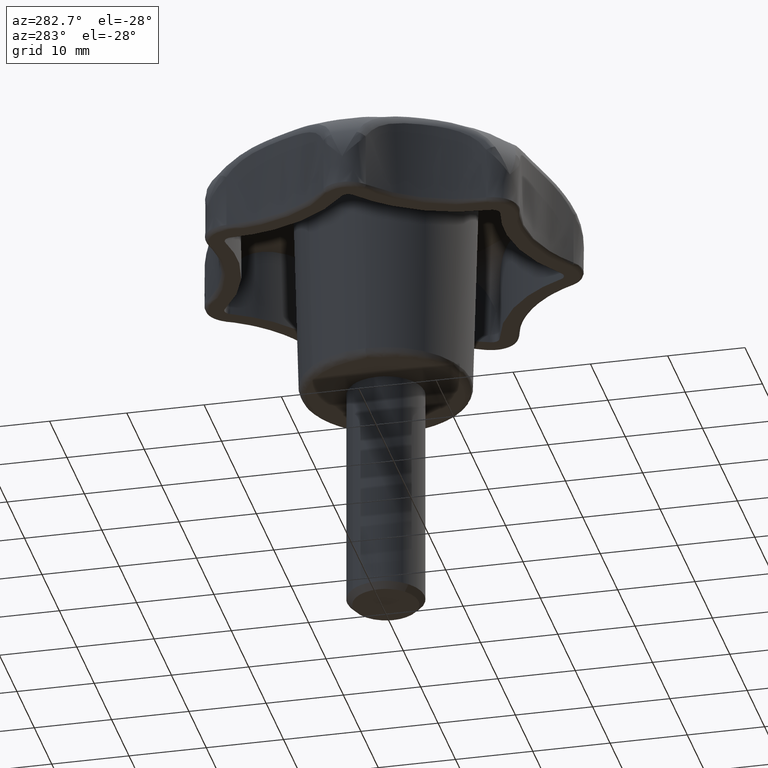
[diagram: clean part render]
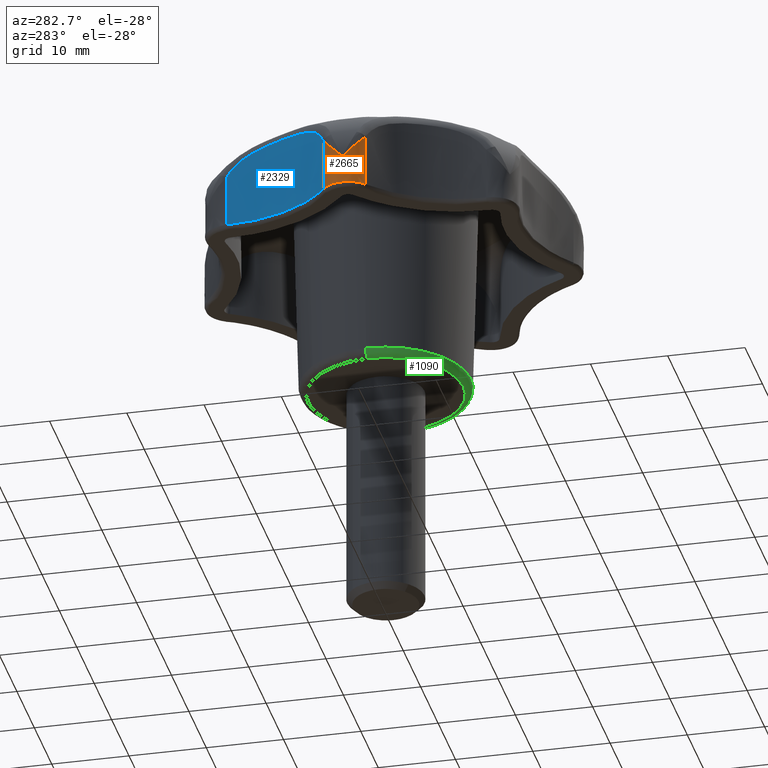
[diagram: same view with three faces highlighted in distinct colors, each labeled with its STEP entity id]
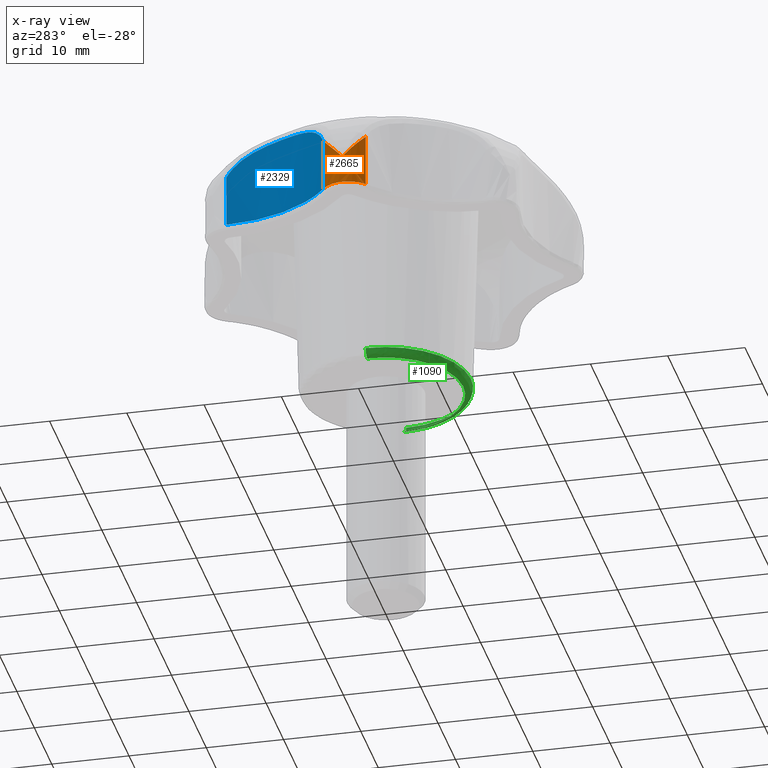
[diagram: x-ray of the same camera — body ghosted, the three highlighted faces saturated]
A machine part, auxiliary view with three faces highlighted in distinct colors.
The next image is the same camera in x-ray (body ghosted, the three faces saturated) — at least one of them is partly hidden behind the body in this view.
Their STEP definitions:

[orange] entity #2665 — the highlighted face is a freeform B-spline surface patch.
#1708=CARTESIAN_POINT('',(-23.682213461277250,-2.736410399521950,17.500000000000000));
#1709=VERTEX_POINT('',#1708);
#1843=CARTESIAN_POINT('',(-23.682214326973849,2.736410172315180,17.500000000000000));
#1844=VERTEX_POINT('',#1843);
#1872=CARTESIAN_POINT('',(-23.682214326973849,2.736410172315180,17.500000000000000));
#1873=CARTESIAN_POINT('',(-23.861324242538998,2.593607576762024,17.500000000000028));
#1874=CARTESIAN_POINT('',(-24.191356746801372,2.272658234154096,17.499999999999950));
#1875=CARTESIAN_POINT('',(-24.573701968862132,1.717476145991039,17.500000000000000));
#1876=CARTESIAN_POINT('',(-24.864392160059769,1.055515035988625,17.500000000000021));
#1877=CARTESIAN_POINT('',(-25.004150075672911,0.377677954296877,17.500000000000021));
#1878=CARTESIAN_POINT('',(-25.004148971906918,-0.361252365236103,17.499999999999961));
#1879=CARTESIAN_POINT('',(-24.869250104944271,-1.039517742271370,17.500000000000131));
#1880=CARTESIAN_POINT('',(-24.602532889975901,-1.658622374827624,17.499999999999911));
#1881=CARTESIAN_POINT('',(-24.223613110557100,-2.234405240480675,17.500000000000071));
#1882=CARTESIAN_POINT('',(-23.899736841708169,-2.563030163246250,17.500000000000011));
#1883=CARTESIAN_POINT('',(-23.682213461277250,-2.736410399521950,17.500000000000000));
#1884=B_SPLINE_CURVE_WITH_KNOTS('',3,(#1872,#1873,#1874,#1875,#1876,#1877,#1878,#1879,#1880,#1881,#1882,#1883),.UNSPECIFIED.,.F.,.U.,(4,1,1,1,1,1,1,1,1,4),(0.000000099004295,0.687209843184893,1.374457459925336,2.012609384164172,2.847117634452309,3.436119319032538,4.221539435134553,4.908780129026921,5.448751376849535,6.283237454115886),.UNSPECIFIED.);
#1885=EDGE_CURVE('',#1844,#1709,#1884,.T.);
#2166=CARTESIAN_POINT('',(-23.682213461277250,-2.736410399521950,24.301415013926700));
#2167=VERTEX_POINT('',#2166);
#2168=CARTESIAN_POINT('',(-23.682213461277250,-2.736410399521950,24.301415013926700));
#2169=CARTESIAN_POINT('',(-23.682213461277250,-2.736410399521950,17.500000000000000));
#2170=QUASI_UNIFORM_CURVE('',1,(#2168,#2169),.UNSPECIFIED.,.F.,.U.);
#2171=EDGE_CURVE('',#2167,#1709,#2170,.T.);
#2261=CARTESIAN_POINT('',(-23.682214326973849,2.736410172315180,24.301413890419202));
#2262=VERTEX_POINT('',#2261);
#2263=CARTESIAN_POINT('',(-23.682214326973849,2.736410172315180,24.301413890419202));
#2264=CARTESIAN_POINT('',(-23.682214326973849,2.736410172315180,17.500000000000000));
#2265=QUASI_UNIFORM_CURVE('',1,(#2263,#2264),.UNSPECIFIED.,.F.,.U.);
#2266=EDGE_CURVE('',#2262,#1844,#2265,.T.);
#2594=CARTESIAN_POINT('',(-23.609835668996190,2.792596184526401,24.471450389274871));
#2595=CARTESIAN_POINT('',(-23.609835668996190,2.792596184526401,17.325713740268132));
#2596=CARTESIAN_POINT('',(-27.383812812887015,-0.058683078933453,24.471450389274864));
#2597=CARTESIAN_POINT('',(-27.383812812887015,-0.058683078933453,17.325713740268124));
#2598=CARTESIAN_POINT('',(-23.553716761517570,-2.834121991633698,24.471450389274871));
#2599=CARTESIAN_POINT('',(-23.553716761517570,-2.834121991633698,17.325713740268132));
#2607=(BOUNDED_SURFACE()B_SPLINE_SURFACE(1,2,((#2594,#2596,#2598),(#2595,#2597,#2599)),.UNSPECIFIED.,.F.,.F.,.U.)B_SPLINE_SURFACE_WITH_KNOTS((2,2),(3,3),(0.0,7.145736649006741),(0.0,7.056580920545700),.UNSPECIFIED.)GEOMETRIC_REPRESENTATION_ITEM()RATIONAL_B_SPLINE_SURFACE(((1.0,0.594822786751341,1.0),(1.0,0.594822786751341,1.0)))REPRESENTATION_ITEM('')SURFACE());
#2608=ORIENTED_EDGE('',*,*,#2266,.T.);
#2609=ORIENTED_EDGE('',*,*,#1885,.T.);
#2610=ORIENTED_EDGE('',*,*,#2171,.F.);
#2611=CARTESIAN_POINT('',(-25.0,0.0,21.138975563360098));
#2612=VERTEX_POINT('',#2611);
#2613=CARTESIAN_POINT('',(-23.682213461277250,-2.736410399521950,24.301415013926700));
#2614=CARTESIAN_POINT('',(-23.898329218996910,-2.564064401839915,24.050995190116719));
#2615=CARTESIAN_POINT('',(-24.087460507419980,-2.371770370710867,23.797851429444329));
#2616=CARTESIAN_POINT('',(-24.333201713626121,-2.059254647838095,23.411183862788761));
#2617=CARTESIAN_POINT('',(-24.408746166321350,-1.951029730680300,23.281138133061429));
#2618=CARTESIAN_POINT('',(-24.512476810511799,-1.783063034121508,23.083960138834200));
#2619=CARTESIAN_POINT('',(-24.545458521466500,-1.726112393647827,23.017859256306210));
#2620=CARTESIAN_POINT('',(-24.607848596946809,-1.611073772343549,22.885662592009641));
#2621=CARTESIAN_POINT('',(-24.637309272729251,-1.552905312458296,22.819471521120320));
#2622=CARTESIAN_POINT('',(-24.720547572732610,-1.376579405854444,22.620529759452900));
#2623=CARTESIAN_POINT('',(-24.769190357079719,-1.256604848521431,22.487410914642510));
#2624=CARTESIAN_POINT('',(-24.852869943457971,-1.012385538422374,22.219711287353711));
#2625=CARTESIAN_POINT('',(-24.887913328187079,-0.888007209806997,22.084992702603589));
#2626=CARTESIAN_POINT('',(-24.943911352480459,-0.637171970690085,21.815416539510661));
#2627=CARTESIAN_POINT('',(-24.964939085608460,-0.510495313281578,21.680318970988960));
#2628=CARTESIAN_POINT('',(-24.985974312640810,-0.319507706594686,21.477407256173549));
#2629=CARTESIAN_POINT('',(-24.991235407386171,-0.255678427951274,21.409720990253170));
#2630=CARTESIAN_POINT('',(-24.996495564836142,-0.159821141148174,21.308167127128211));
#2631=CARTESIAN_POINT('',(-24.997810551698869,-0.127847645816391,21.274309461715308));
#2632=CARTESIAN_POINT('',(-24.999563229161481,-0.063881775316565,21.206590057781781));
#2633=CARTESIAN_POINT('',(-25.0,-0.031719300753692,21.172548321598050));
#2634=CARTESIAN_POINT('',(-25.0,-6.761376E-016,21.138975563360152));
#2635=B_SPLINE_CURVE_WITH_KNOTS('',3,(#2613,#2614,#2615,#2616,#2617,#2618,#2619,#2620,#2621,#2622,#2623,#2624,#2625,#2626,#2627,#2628,#2629,#2630,#2631,#2632,#2633,#2634),.UNSPECIFIED.,.F.,.U.,(4,2,2,2,2,2,2,2,2,2,4),(0.000000089163196,0.250000000000004,0.375000000000007,0.437500000000007,0.500000000000007,0.625000000000006,0.750000000000005,0.875000000000004,0.937500000000003,0.968750000000002,1.0),.UNSPECIFIED.);
#2636=EDGE_CURVE('',#2167,#2612,#2635,.T.);
#2637=ORIENTED_EDGE('',*,*,#2636,.T.);
#2638=CARTESIAN_POINT('',(-25.0,-3.380687E-016,21.138975563360152));
#2639=CARTESIAN_POINT('',(-25.0,0.031719290813543,21.172548311077069));
#2640=CARTESIAN_POINT('',(-24.999563229436749,0.063881755187443,21.206590036476591));
#2641=CARTESIAN_POINT('',(-24.997810553078569,0.127847605545865,21.274309419076729));
#2642=CARTESIAN_POINT('',(-24.996495567044182,0.159821090821689,21.308167073830951));
#2643=CARTESIAN_POINT('',(-24.991235412908161,0.255678347499461,21.409720904980109));
#2644=CARTESIAN_POINT('',(-24.985974321481489,0.319507606093864,21.477407149559522));
#2645=CARTESIAN_POINT('',(-24.964939107681470,0.510495153336658,21.680318800735211));
#2646=CARTESIAN_POINT('',(-24.943911387893412,0.637171771176084,21.815416326404609));
#2647=CARTESIAN_POINT('',(-24.887913398505930,0.888006935710296,22.084992406713582));
#2648=CARTESIAN_POINT('',(-24.852870035836840,1.012385227169185,22.219710949226339));
#2649=CARTESIAN_POINT('',(-24.769190501988060,1.256604467250539,22.487410493663479));
#2650=CARTESIAN_POINT('',(-24.720547747917109,1.376578992088233,22.620529298273699));
#2651=CARTESIAN_POINT('',(-24.637309499182319,1.552904854090722,22.819471001133110));
#2652=CARTESIAN_POINT('',(-24.607848841467789,1.611073299800431,22.885662052668970));
#2653=CARTESIAN_POINT('',(-24.545458804085740,1.726111894217513,23.017858678703330));
#2654=CARTESIAN_POINT('',(-24.512477113327421,1.783062521666328,23.083959541964219));
#2655=CARTESIAN_POINT('',(-24.408746535083829,1.951029177795269,23.281137474609690));
#2656=CARTESIAN_POINT('',(-24.333202129841499,2.059254072253367,23.411183165326939));
#2657=CARTESIAN_POINT('',(-24.087461017358269,2.371769814752960,23.797850712183909));
#2658=CARTESIAN_POINT('',(-23.898329996443010,2.564063674348443,24.050994201396509));
#2659=CARTESIAN_POINT('',(-23.682214326973899,2.736410172315165,24.301413784592398));
#2660=B_SPLINE_CURVE_WITH_KNOTS('',3,(#2638,#2639,#2640,#2641,#2642,#2643,#2644,#2645,#2646,#2647,#2648,#2649,#2650,#2651,#2652,#2653,#2654,#2655,#2656,#2657,#2658,#2659),.UNSPECIFIED.,.F.,.U.,(4,2,2,2,2,2,2,2,2,2,4),(0.0,0.031249999999999,0.062499999999999,0.124999999999998,0.249999999999998,0.374999999999998,0.499999999999998,0.562499999999997,0.624999999999997,0.749999999999998,1.0),.UNSPECIFIED.);
#2661=EDGE_CURVE('',#2612,#2262,#2660,.T.);
#2662=ORIENTED_EDGE('',*,*,#2661,.T.);
#2663=EDGE_LOOP('',(#2608,#2609,#2610,#2637,#2662));
#2664=FACE_OUTER_BOUND('',#2663,.T.);
#2665=ADVANCED_FACE('',(#2664),#2607,.T.);

[blue] entity #2329 — the highlighted face is a freeform B-spline surface patch.
#1843=CARTESIAN_POINT('',(-23.682214326973849,2.736410172315180,17.500000000000000));
#1844=VERTEX_POINT('',#1843);
#1968=CARTESIAN_POINT('',(-16.905030000000000,16.809377000000001,17.500000000000000));
#1969=VERTEX_POINT('',#1968);
#1996=CARTESIAN_POINT('',(-16.905030000000000,16.809377000000001,17.500000000000000));
#1997=CARTESIAN_POINT('',(-16.904995968267968,15.967878284675381,17.500000000000039));
#1998=CARTESIAN_POINT('',(-17.023249986591619,14.284888276377080,17.499999999999961));
#1999=CARTESIAN_POINT('',(-17.525308296298260,11.933725536559781,17.500000000000039));
#2000=CARTESIAN_POINT('',(-18.397013151603950,9.470098700279415,17.500000000000028));
#2001=CARTESIAN_POINT('',(-19.583790977007130,7.230982048282787,17.499999999999929));
#2002=CARTESIAN_POINT('',(-21.366889493644191,4.826739265381635,17.500000000000060));
#2003=CARTESIAN_POINT('',(-22.761052698976862,3.470845402103394,17.499999999999869));
#2004=CARTESIAN_POINT('',(-23.682214326973849,2.736410172315180,17.500000000000000));
#2005=B_SPLINE_CURVE_WITH_KNOTS('',3,(#1996,#1997,#1998,#1999,#2000,#2001,#2002,#2003,#2004),.UNSPECIFIED.,.F.,.U.,(4,1,1,1,1,1,4),(9.802111E-009,2.524497166632488,5.049002200646042,7.194826292159531,10.350442069279440,12.622498934974800,16.156795951664112),.UNSPECIFIED.);
#2006=EDGE_CURVE('',#1969,#1844,#2005,.T.);
#2239=CARTESIAN_POINT('',(-24.198219838475872,2.339953508890089,28.162287665772389));
#2240=CARTESIAN_POINT('',(-24.198219838475872,2.339953508890089,17.233442808355690));
#2241=CARTESIAN_POINT('',(-16.507380171212453,8.030875496950060,28.162287665772389));
#2242=CARTESIAN_POINT('',(-16.507380171212453,8.030875496950060,17.233442808355687));
#2243=CARTESIAN_POINT('',(-16.921935220763711,17.589314280173415,28.162287665772389));
#2244=CARTESIAN_POINT('',(-16.921935220763711,17.589314280173415,17.233442808355694));
#2252=(BOUNDED_SURFACE()B_SPLINE_SURFACE(1,2,((#2239,#2241,#2243),(#2240,#2242,#2244)),.UNSPECIFIED.,.F.,.F.,.U.)B_SPLINE_SURFACE_WITH_KNOTS((2,2),(3,3),(0.0,10.928844857416699),(0.0,17.945983702385281),.UNSPECIFIED.)GEOMETRIC_REPRESENTATION_ITEM()RATIONAL_B_SPLINE_SURFACE(((1.0,0.879150756821254,0.991265390878187),(1.0,0.879150756821254,0.991265390878187)))REPRESENTATION_ITEM('')SURFACE());
#2253=CARTESIAN_POINT('',(-16.905030000000000,16.809377000000001,24.301414682178500));
#2254=VERTEX_POINT('',#2253);
#2255=CARTESIAN_POINT('',(-16.905030000000000,16.809377000000001,24.301414682178500));
#2256=CARTESIAN_POINT('',(-16.905030000000000,16.809377000000001,17.500000000000000));
#2257=QUASI_UNIFORM_CURVE('',1,(#2255,#2256),.UNSPECIFIED.,.F.,.U.);
#2258=EDGE_CURVE('',#2254,#1969,#2257,.T.);
#2259=ORIENTED_EDGE('',*,*,#2258,.T.);
#2260=ORIENTED_EDGE('',*,*,#2006,.T.);
#2261=CARTESIAN_POINT('',(-23.682214326973849,2.736410172315180,24.301413890419202));
#2262=VERTEX_POINT('',#2261);
#2263=CARTESIAN_POINT('',(-23.682214326973849,2.736410172315180,24.301413890419202));
#2264=CARTESIAN_POINT('',(-23.682214326973849,2.736410172315180,17.500000000000000));
#2265=QUASI_UNIFORM_CURVE('',1,(#2263,#2264),.UNSPECIFIED.,.F.,.U.);
#2266=EDGE_CURVE('',#2262,#1844,#2265,.T.);
#2267=ORIENTED_EDGE('',*,*,#2266,.F.);
#2268=CARTESIAN_POINT('',(-23.682214326973849,2.736410172315180,24.301413890419202));
#2269=CARTESIAN_POINT('',(-23.528403330968629,2.859069873282948,24.639299213849320));
#2270=CARTESIAN_POINT('',(-23.354222524527941,3.002041661560523,24.952875790609092));
#2271=CARTESIAN_POINT('',(-23.067367672792191,3.248932086654038,25.388877001612681));
#2272=CARTESIAN_POINT('',(-22.967465255903619,3.336661239341970,25.528455668552940));
#2273=CARTESIAN_POINT('',(-22.811684993809241,3.476864593930955,25.729256134999900));
#2274=CARTESIAN_POINT('',(-22.758769932414879,3.525035346905201,25.794760603561560));
#2275=CARTESIAN_POINT('',(-22.651041999121240,3.624342117229226,25.922910734261489));
#2276=CARTESIAN_POINT('',(-22.596110981221010,3.675592159159784,25.985677490158508));
#2277=CARTESIAN_POINT('',(-22.319571746626689,3.936968248950659,26.289503183385769));
#2278=CARTESIAN_POINT('',(-22.090872155336339,4.163774894791468,26.502607805354700));
#2279=CARTESIAN_POINT('',(-21.742113251149139,4.530692374575997,26.783529077828089));
#2280=CARTESIAN_POINT('',(-21.624896943466620,4.657456690845166,26.870691211666891));
#2281=CARTESIAN_POINT('',(-21.389351797726910,4.919989129639293,27.032899753173488));
#2282=CARTESIAN_POINT('',(-21.270676093920621,5.056193325505355,27.108114005986089));
#2283=CARTESIAN_POINT('',(-20.919385916097230,5.472115811824452,27.313865222525060));
#2284=CARTESIAN_POINT('',(-20.690041940840100,5.760693441738651,27.425818169367691));
#2285=CARTESIAN_POINT('',(-20.244278360168099,6.359417418842776,27.610374675691951));
#2286=CARTESIAN_POINT('',(-20.027847057745561,6.669562203730194,27.682955258246551));
#2287=CARTESIAN_POINT('',(-19.766928561732460,7.070432710718975,27.753739892980171));
#2288=CARTESIAN_POINT('',(-19.715224532774240,7.151267785221774,27.766891614422939));
#2289=CARTESIAN_POINT('',(-19.612809771703098,7.314259084670430,27.791268741313949));
#2290=CARTESIAN_POINT('',(-19.562040213969780,7.396514830926001,27.802504871274561));
#2291=CARTESIAN_POINT('',(-19.411996929963319,7.644052922609256,27.833288322923980));
#2292=CARTESIAN_POINT('',(-19.314816108663159,7.810364765066487,27.849969684641909));
#2293=CARTESIAN_POINT('',(-19.031726536689220,8.313130847133017,27.889580756472089));
#2294=CARTESIAN_POINT('',(-18.854261234522529,8.653412968348849,27.902214240235910));
#2295=CARTESIAN_POINT('',(-18.521606138518781,9.344100727586353,27.902249461002469));
#2296=CARTESIAN_POINT('',(-18.366417012227039,9.694506643412856,27.889648449731201));
#2297=CARTESIAN_POINT('',(-18.150377523449571,10.227705834739909,27.850269793426541));
#2298=CARTESIAN_POINT('',(-18.081157300732361,10.406704569189349,27.833696997019310));
#2299=CARTESIAN_POINT('',(-17.981540969746330,10.677106151673071,27.803156965033949));
#2300=CARTESIAN_POINT('',(-17.949037998350668,10.767557294944490,27.792027867474030));
#2301=CARTESIAN_POINT('',(-17.885442767431719,10.949095390606830,27.767757711900831));
#2302=CARTESIAN_POINT('',(-17.854310444472230,11.040304178937930,27.754597205379099));
#2303=CARTESIAN_POINT('',(-17.702715442579400,11.496356100064890,27.683681191144981));
#2304=CARTESIAN_POINT('',(-17.594797610922480,11.860078987199040,27.610939857724901));
#2305=CARTESIAN_POINT('',(-17.404268169415509,12.582909026320170,27.426272141434790));
#2306=CARTESIAN_POINT('',(-17.321665716548001,12.942022968906480,27.314361599255751));
#2307=CARTESIAN_POINT('',(-17.233345046137330,13.385965498029600,27.143452444570361));
#2308=CARTESIAN_POINT('',(-17.216427112506210,13.474503839429209,27.107710471189229));
#2309=CARTESIAN_POINT('',(-17.184059075457149,13.651016570907720,27.032902646019000));
#2310=CARTESIAN_POINT('',(-17.168581178125550,13.739164860383539,26.993751820445059));
#2311=CARTESIAN_POINT('',(-17.124617944554441,14.000778646471110,26.871878995936630));
#2312=CARTESIAN_POINT('',(-17.098535607069760,14.171717530537910,26.784641596587711));
#2313=CARTESIAN_POINT('',(-17.029037283872668,14.673295404611610,26.503852160825229));
#2314=CARTESIAN_POINT('',(-16.994372930024149,14.992744068955229,26.291297528969199));
#2315=CARTESIAN_POINT('',(-16.962503334510441,15.370115435525580,25.989413630351351));
#2316=CARTESIAN_POINT('',(-16.956702228720740,15.444488911899100,25.927221429008089));
#2317=CARTESIAN_POINT('',(-16.946166298063140,15.590933807410019,25.799065113129569));
#2318=CARTESIAN_POINT('',(-16.941431940495409,15.663039287684160,25.733050055760561));
#2319=CARTESIAN_POINT('',(-16.928818952544091,15.873632401416881,25.531236286592041));
#2320=CARTESIAN_POINT('',(-16.922469605983839,16.007146972627250,25.391046237985840));
#2321=CARTESIAN_POINT('',(-16.908203337485290,16.386960801887032,24.953500659837779));
#2322=CARTESIAN_POINT('',(-16.905029999999989,16.612659483941769,24.639275815447672));
#2323=CARTESIAN_POINT('',(-16.905030000000000,16.809377000000001,24.301414682178500));
#2324=B_SPLINE_CURVE_WITH_KNOTS('',3,(#2268,#2269,#2270,#2271,#2272,#2273,#2274,#2275,#2276,#2277,#2278,#2279,#2280,#2281,#2282,#2283,#2284,#2285,#2286,#2287,#2288,#2289,#2290,#2291,#2292,#2293,#2294,#2295,#2296,#2297,#2298,#2299,#2300,#2301,#2302,#2303,#2304,#2305,#2306,#2307,#2308,#2309,#2310,#2311,#2312,#2313,#2314,#2315,#2316,#2317,#2318,#2319,#2320,#2321,#2322,#2323),.UNSPECIFIED.,.F.,.U.,(4,2,2,2,2,2,2,2,2,2,2,2,2,2,2,2,2,2,2,2,2,2,2,2,2,2,2,4),(0.0,0.062499999999999,0.093749999999999,0.109374999999999,0.124999999999999,0.187500000000000,0.218750000000001,0.250000000000001,0.312500000000001,0.375000000000001,0.390625000000001,0.406250000000001,0.437500000000001,0.500000000000001,0.562500000000001,0.593750000000001,0.609375000000001,0.625000000000001,0.687500000000001,0.750000000000001,0.765625000000001,0.781250000000001,0.812500000000000,0.875000000000000,0.890625000000000,0.906250000000000,0.937499999999999,1.0),.UNSPECIFIED.);
#2325=EDGE_CURVE('',#2262,#2254,#2324,.T.);
#2326=ORIENTED_EDGE('',*,*,#2325,.T.);
#2327=EDGE_LOOP('',(#2259,#2260,#2267,#2326));
#2328=FACE_OUTER_BOUND('',#2327,.T.);
#2329=ADVANCED_FACE('',(#2328),#2252,.F.);

[green] entity #1090 — the highlighted face is a freeform B-spline surface patch.
#883=CARTESIAN_POINT('',(-10.025842676378041,0.0,0.0));
#884=VERTEX_POINT('',#883);
#885=CARTESIAN_POINT('',(-10.025051087676740,0.125985139666883,2.806508E-016));
#886=VERTEX_POINT('',#885);
#887=CARTESIAN_POINT('',(-10.025842676378041,0.0,0.0));
#888=CARTESIAN_POINT('',(-10.025051087676740,0.125985139666883,2.806508E-016));
#889=QUASI_UNIFORM_CURVE('',1,(#887,#888),.UNSPECIFIED.,.F.,.U.);
#890=EDGE_CURVE('',#884,#886,#889,.T.);
#929=CARTESIAN_POINT('',(10.025051087676740,-0.125985139666881,2.650591E-016));
#930=VERTEX_POINT('',#929);
#936=CARTESIAN_POINT('',(-0.062948587099719,-10.025645058921480,1.325301E-016));
#937=VERTEX_POINT('',#936);
#938=CARTESIAN_POINT('',(10.025051087676740,-0.125985139666881,2.650591E-016));
#939=CARTESIAN_POINT('',(10.015711886764450,-0.881618386140908,2.649984E-016));
#940=CARTESIAN_POINT('',(9.848042570488307,-2.207097426998823,2.628921E-016));
#941=CARTESIAN_POINT('',(9.221120742167862,-4.072450711076021,2.547599E-016));
#942=CARTESIAN_POINT('',(8.407885848158749,-5.545116860777454,2.441322E-016));
#943=CARTESIAN_POINT('',(7.518356438043306,-6.668868521047022,2.324670E-016));
#944=CARTESIAN_POINT('',(6.575422306684533,-7.605605714110064,2.200804E-016));
#945=CARTESIAN_POINT('',(5.518280397173029,-8.415524972479672,2.061735E-016));
#946=CARTESIAN_POINT('',(4.191581650799116,-9.147255548516228,1.886969E-016));
#947=CARTESIAN_POINT('',(2.886679567942263,-9.634454444703001,1.714882E-016));
#948=CARTESIAN_POINT('',(1.448868855581873,-9.955731866016921,1.525087E-016));
#949=CARTESIAN_POINT('',(0.488483730937781,-10.029149026654640,1.398197E-016));
#950=CARTESIAN_POINT('',(-0.062948587099719,-10.025645058921480,1.325301E-016));
#951=B_SPLINE_CURVE_WITH_KNOTS('',3,(#938,#939,#940,#941,#942,#943,#944,#945,#946,#947,#948,#949,#950),.UNSPECIFIED.,.F.,.U.,(4,1,1,1,1,1,1,1,1,1,4),(0.000000044664729,2.267040167571548,3.982657753250194,5.882082926442791,7.291338081911768,8.271669079463285,9.864720599852101,11.273981629485821,12.805779210908680,14.031216334329990,15.685541811405200),.UNSPECIFIED.);
#952=EDGE_CURVE('',#930,#937,#951,.T.);
#954=CARTESIAN_POINT('',(-0.062948587099719,-10.025645058921480,1.325301E-016));
#955=CARTESIAN_POINT('',(-0.634806100655256,-10.022100327648250,1.249706E-016));
#956=CARTESIAN_POINT('',(-1.614589835033816,-9.931788505279913,1.120115E-016));
#957=CARTESIAN_POINT('',(-3.085926872118229,-9.574047956126812,9.253250E-017));
#958=CARTESIAN_POINT('',(-4.513506138743078,-9.005449048714375,7.361440E-017));
#959=CARTESIAN_POINT('',(-5.791797980618040,-8.226714239342794,5.665225E-017));
#960=CARTESIAN_POINT('',(-6.848077346956063,-7.353523877408091,4.261699E-017));
#961=CARTESIAN_POINT('',(-7.838976377280606,-6.319233622217999,2.943259E-017));
#962=CARTESIAN_POINT('',(-8.819513923754970,-4.901444948129936,1.635331E-017));
#963=CARTESIAN_POINT('',(-9.505752971505608,-3.320071315310131,7.150714E-018));
#964=CARTESIAN_POINT('',(-9.926813951250184,-1.674730834100783,1.448139E-018));
#965=CARTESIAN_POINT('',(-10.025923930255660,-0.633144817457084,5.151317E-020));
#966=CARTESIAN_POINT('',(-10.025842676378041,0.0,0.0));
#967=B_SPLINE_CURVE_WITH_KNOTS('',3,(#954,#955,#956,#957,#958,#959,#960,#961,#962,#963,#964,#965,#966),.UNSPECIFIED.,.F.,.U.,(4,1,1,1,1,1,1,1,1,1,4),(0.000000044684032,1.715599743323480,2.941049846921944,4.534132250502715,6.311026335834640,7.413912576773759,8.639331003563889,10.600053353434779,12.560766060378990,13.786214746281470,15.685632256208139),.UNSPECIFIED.);
#968=EDGE_CURVE('',#937,#884,#967,.T.);
#981=CARTESIAN_POINT('',(11.027940483581148,0.169657150836479,1.042530501578344));
#982=CARTESIAN_POINT('',(11.026015201079669,0.016456102046875,1.042530501578344));
#983=CARTESIAN_POINT('',(10.885527553815916,-11.162607171165357,1.042530501578344));
#984=CARTESIAN_POINT('',(-0.138539808674720,-11.024067362490634,1.042530501578344));
#985=CARTESIAN_POINT('',(-11.162607171165357,-10.885527553815917,1.042530501578344));
#986=CARTESIAN_POINT('',(-11.022119523897153,0.293535719750481,1.042530501578344));
#987=CARTESIAN_POINT('',(-11.020194241391330,0.446736768886072,1.042530501578344));
#988=CARTESIAN_POINT('',(11.075498973596110,0.170388804940529,-0.074374273885127));
#989=CARTESIAN_POINT('',(11.073565388227136,0.016527069728107,-0.074374273885127));
#990=CARTESIAN_POINT('',(10.932471881657236,-11.210746417335688,-0.074374273885127));
#991=CARTESIAN_POINT('',(-0.139137267839225,-11.071609149496464,-0.074374273885127));
#992=CARTESIAN_POINT('',(-11.210746417335688,-10.932471881657239,-0.074374273885127));
#993=CARTESIAN_POINT('',(-11.069652910761318,0.294801605762250,-0.074374273885127));
#994=CARTESIAN_POINT('',(-11.067719325387982,0.448663341322151,-0.074374273885127));
#995=CARTESIAN_POINT('',(9.959915466003135,0.153226332972152,0.002358440826706));
#996=CARTESIAN_POINT('',(9.958176641696692,0.014862374849667,0.002358440826706));
#997=CARTESIAN_POINT('',(9.831294827921230,-10.081540063671428,0.002358440826706));
#998=CARTESIAN_POINT('',(-0.125122617875099,-9.956417445796328,0.002358440826706));
#999=CARTESIAN_POINT('',(-10.081540063671428,-9.831294827921230,0.002358440826706));
#1000=CARTESIAN_POINT('',(-9.954658249891946,0.265107610919731,0.002358440826706));
#1001=CARTESIAN_POINT('',(-9.952919425581577,0.403471569354695,0.002358440826706));
#1009=(BOUNDED_SURFACE()B_SPLINE_SURFACE(2,2,((#981,#988,#995),(#982,#989,#996),(#983,#990,#997),(#984,#991,#998),(#985,#992,#999),(#986,#993,#1000),(#987,#994,#1001)),.UNSPECIFIED.,.F.,.F.,.U.)B_SPLINE_SURFACE_WITH_KNOTS((3,1,2,1,3),(3,3),(0.0,0.365334302338212,18.632049421606990,36.898764540875760,37.264098844053649),(0.0,1.789087496625314),.UNSPECIFIED.)GEOMETRIC_REPRESENTATION_ITEM()RATIONAL_B_SPLINE_SURFACE(((0.926890788416448,0.618103863963215,0.927312414658469),(0.921524062986411,0.614525024075506,0.921943247999861),(0.647821066019926,0.432004189779236,0.648115748376231),(0.916157337556375,0.610946184187796,0.916574081341254),(0.647821066019926,0.432004189779236,0.648115748376231),(0.921524062998746,0.614525024083731,0.921943248012202),(0.926890788441117,0.618103863979666,0.927312414683150)))REPRESENTATION_ITEM('')SURFACE());
#1010=ORIENTED_EDGE('',*,*,#968,.F.);
#1011=ORIENTED_EDGE('',*,*,#952,.F.);
#1012=CARTESIAN_POINT('',(11.024629472798701,-0.138546872779515,0.973822997330881));
#1013=VERTEX_POINT('',#1012);
#1014=CARTESIAN_POINT('',(11.024629472798701,-0.138546872779515,0.973822997330881));
#1015=CARTESIAN_POINT('',(11.021576571906950,-0.138508506910787,0.853168946971651));
#1016=CARTESIAN_POINT('',(10.984403481686559,-0.138041351552149,0.677180712107950));
#1017=CARTESIAN_POINT('',(10.863119406070160,-0.136517170779658,0.439953172554367));
#1018=CARTESIAN_POINT('',(10.723666893965611,-0.134764666668236,0.270943938921762));
#1019=CARTESIAN_POINT('',(10.515911261024140,-0.132153795058809,0.116355507426390));
#1020=CARTESIAN_POINT('',(10.282469580074380,-0.129220126049560,0.021451107803579));
#1021=CARTESIAN_POINT('',(10.105491360211561,-0.126996035132596,-0.000013243664938));
#1022=CARTESIAN_POINT('',(10.025051087676740,-0.125985139666881,2.650591E-016));
#1023=B_SPLINE_CURVE_WITH_KNOTS('',3,(#1014,#1015,#1016,#1017,#1018,#1019,#1020,#1021,#1022),.UNSPECIFIED.,.F.,.U.,(4,1,1,1,1,1,4),(0.000000152950298,0.362026952125885,0.530978599592791,0.796439260835892,1.013675356915096,1.303305424896617,1.544653803557903),.UNSPECIFIED.);
#1024=EDGE_CURVE('',#1013,#930,#1023,.T.);
#1025=ORIENTED_EDGE('',*,*,#1024,.F.);
#1026=CARTESIAN_POINT('',(7.863942832840470,-7.727875076351858,0.973822694536141));
#1027=VERTEX_POINT('',#1026);
#1028=CARTESIAN_POINT('',(11.024629472798701,-0.138546872779515,0.973822997330881));
#1029=CARTESIAN_POINT('',(11.014061059345419,-0.994122400358506,0.973822963326431));
#1030=CARTESIAN_POINT('',(10.820585521238041,-2.483593108356920,0.973822904061867));
#1031=CARTESIAN_POINT('',(10.217730279982041,-4.232398696489937,0.973822834336476));
#1032=CARTESIAN_POINT('',(9.556154638675526,-5.546913553242148,0.973822781847516));
#1033=CARTESIAN_POINT('',(8.833568895009114,-6.650605436524437,0.973822737713563));
#1034=CARTESIAN_POINT('',(8.202255223149596,-7.383627915913537,0.973822708344477));
#1035=CARTESIAN_POINT('',(7.863942832840470,-7.727875076351858,0.973822694536141));
#1036=B_SPLINE_CURVE_WITH_KNOTS('',3,(#1028,#1029,#1030,#1031,#1032,#1033,#1034,#1035),.UNSPECIFIED.,.F.,.U.,(4,1,1,1,1,4),(0.000000010891480,2.566887547608635,4.475587455526249,5.528674753388035,6.976670805796193,8.424653782565663),.UNSPECIFIED.);
#1037=EDGE_CURVE('',#1013,#1027,#1036,.T.);
#1038=ORIENTED_EDGE('',*,*,#1037,.T.);
#1039=CARTESIAN_POINT('',(-0.069231420780112,-11.025282638570861,0.973822998665384));
#1040=VERTEX_POINT('',#1039);
#1041=CARTESIAN_POINT('',(7.863942832840470,-7.727875076351858,0.973822694536141));
#1042=CARTESIAN_POINT('',(7.268080023764101,-8.334515268152009,0.973822717292728));
#1043=CARTESIAN_POINT('',(6.151121537833257,-9.234427721397939,0.973822760007735));
#1044=CARTESIAN_POINT('',(4.294935993485765,-10.211656110189489,0.973822831117534));
#1045=CARTESIAN_POINT('',(2.298850249949204,-10.863806284178009,0.973822907683086));
#1046=CARTESIAN_POINT('',(0.781073224326939,-11.030787621028390,0.973822965981154));
#1047=CARTESIAN_POINT('',(-0.069231420780112,-11.025282638570861,0.973822998665384));
#1048=B_SPLINE_CURVE_WITH_KNOTS('',3,(#1041,#1042,#1043,#1044,#1045,#1046,#1047),.UNSPECIFIED.,.F.,.U.,(4,1,1,1,4),(0.000000012103605,2.550939155491074,4.274554928423200,6.273930211953734,8.824869355341182),.UNSPECIFIED.);
#1049=EDGE_CURVE('',#1027,#1040,#1048,.T.);
#1050=ORIENTED_EDGE('',*,*,#1049,.T.);
#1051=CARTESIAN_POINT('',(-11.025499999999990,0.0,0.973822999999896));
#1052=VERTEX_POINT('',#1051);
#1053=CARTESIAN_POINT('',(-0.069231420780112,-11.025282638570861,0.973822998665384));
#1054=CARTESIAN_POINT('',(-0.698113233045956,-11.021391729032411,0.973822998741506));
#1055=CARTESIAN_POINT('',(-1.708241295739914,-10.928257578930760,0.973822998863838));
#1056=CARTESIAN_POINT('',(-3.175663895328296,-10.585681721942080,0.973822999041720));
#1057=CARTESIAN_POINT('',(-4.635586474570813,-10.055288073350351,0.973822999218812));
#1058=CARTESIAN_POINT('',(-6.291510953344466,-9.134712046086460,0.973822999419969));
#1059=CARTESIAN_POINT('',(-7.745213567000557,-7.917980506175822,0.973822999596832));
#1060=CARTESIAN_POINT('',(-8.917587606989116,-6.550950534881646,0.973822999739765));
#1061=CARTESIAN_POINT('',(-9.854529847511595,-5.064069439448441,0.973822999854341));
#1062=CARTESIAN_POINT('',(-10.508007224579730,-3.479339106131419,0.973822999934611));
#1063=CARTESIAN_POINT('',(-10.927673427560970,-1.751887010535113,0.973822999986709));
#1064=CARTESIAN_POINT('',(-11.025559691453070,-0.651353975416564,0.973822999999434));
#1065=CARTESIAN_POINT('',(-11.025499999999990,0.0,0.973822999999896));
#1066=B_SPLINE_CURVE_WITH_KNOTS('',3,(#1053,#1054,#1055,#1056,#1057,#1058,#1059,#1060,#1061,#1062,#1063,#1064,#1065),.UNSPECIFIED.,.F.,.U.,(4,1,1,1,1,1,1,1,1,1,4),(0.000000044567219,1.886669291832950,3.032155807841821,4.514547938883787,6.535994401832790,8.692158578594826,10.174555164313119,11.926480920923700,13.947933902698880,15.295556035844941,17.249609869040182),.UNSPECIFIED.);
#1067=EDGE_CURVE('',#1040,#1052,#1066,.T.);
#1068=ORIENTED_EDGE('',*,*,#1067,.T.);
#1069=CARTESIAN_POINT('',(-11.024629472798701,0.138546872779519,0.973822997330881));
#1070=VERTEX_POINT('',#1069);
#1071=CARTESIAN_POINT('',(-11.025499999999990,0.0,0.973822999999896));
#1072=CARTESIAN_POINT('',(-11.024629472798701,0.138546872779519,0.973822997330881));
#1073=QUASI_UNIFORM_CURVE('',1,(#1071,#1072),.UNSPECIFIED.,.F.,.U.);
#1074=EDGE_CURVE('',#1052,#1070,#1073,.T.);
#1075=ORIENTED_EDGE('',*,*,#1074,.T.);
#1076=CARTESIAN_POINT('',(-11.024629472798701,0.138546872779519,0.973822997330881));
#1077=CARTESIAN_POINT('',(-11.021221359224350,0.138504042946233,0.837071289620436));
#1078=CARTESIAN_POINT('',(-10.966319165078930,0.137814085389883,0.605277110370411));
#1079=CARTESIAN_POINT('',(-10.787765066367591,0.135570190423731,0.333493980253932));
#1080=CARTESIAN_POINT('',(-10.603428242911351,0.133253623739880,0.174457093260378));
#1081=CARTESIAN_POINT('',(-10.354757378447699,0.130128569107664,0.040249809721761));
#1082=CARTESIAN_POINT('',(-10.161841558880599,0.127704189873192,-0.000178693741763));
#1083=CARTESIAN_POINT('',(-10.025051087676740,0.125985139666883,2.806508E-016));
#1084=B_SPLINE_CURVE_WITH_KNOTS('',3,(#1076,#1077,#1078,#1079,#1080,#1081,#1082,#1083),.UNSPECIFIED.,.F.,.U.,(4,1,1,1,1,4),(0.000000152950377,0.410300179078472,0.699929835192811,0.965393555575031,1.134353777429737,1.544653803557903),.UNSPECIFIED.);
#1085=EDGE_CURVE('',#1070,#886,#1084,.T.);
#1086=ORIENTED_EDGE('',*,*,#1085,.T.);
#1087=ORIENTED_EDGE('',*,*,#890,.F.);
#1088=EDGE_LOOP('',(#1010,#1011,#1025,#1038,#1050,#1068,#1075,#1086,#1087));
#1089=FACE_OUTER_BOUND('',#1088,.T.);
#1090=ADVANCED_FACE('',(#1089),#1009,.T.);